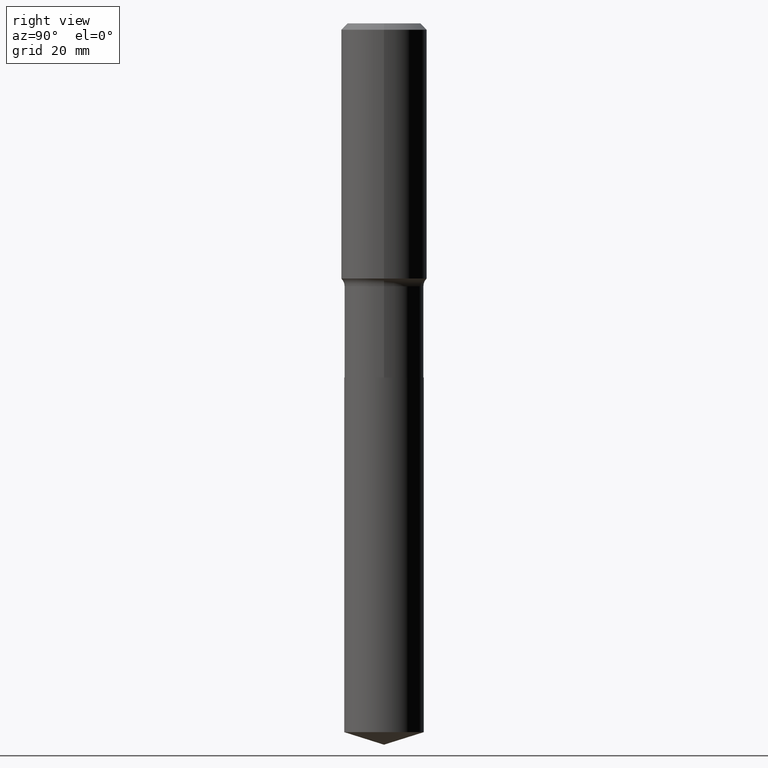
[diagram: clean part render]
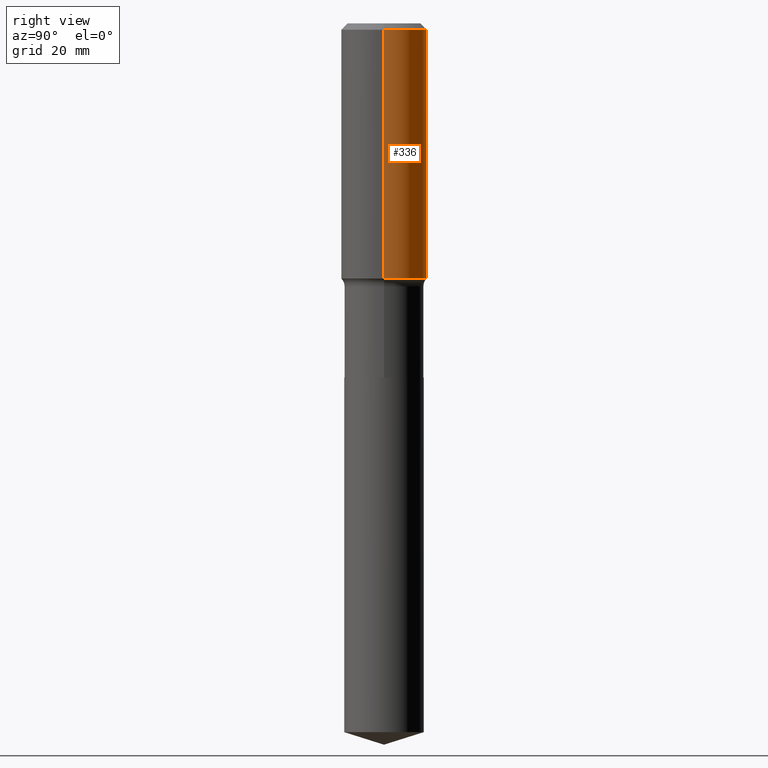
[diagram: same view with one face highlighted and labeled with its STEP entity id]
A machine part, right view. The second image highlights one B-rep face of the part: STEP entity #336.
In plain terms, the highlighted cylindrical surface (partial cylindrical patch) has radius 7.9375 mm, axis along (-0, 0, 1).
Its self-contained STEP definition (entity closure, byte-faithful):
#10 = EDGE_CURVE ( 'NONE', #36, #463, #171, .T. ) ;
#13 = ORIENTED_EDGE ( 'NONE', *, *, #109, .T. ) ;
#33 = DIRECTION ( 'NONE',  ( -2.445468806185136877E-29, 3.491481338843145188E-15, 1.000000000000000000 ) ) ;
#36 = VERTEX_POINT ( 'NONE', #245 ) ;
#65 = EDGE_LOOP ( 'NONE', ( #13, #467, #359, #346 ) ) ;
#78 = CARTESIAN_POINT ( 'NONE',  ( -0.3125000000000000000, -1.104182445818667700E-15, -0.04687500000000027062 ) ) ;
#91 = CARTESIAN_POINT ( 'NONE',  ( 1.146313502899289261E-30, -1.636631877582734044E-16, -0.04687500000000027062 ) ) ;
#92 = FACE_OUTER_BOUND ( 'NONE', #65, .T. ) ;
#106 = VERTEX_POINT ( 'NONE', #78 ) ;
#109 = EDGE_CURVE ( 'NONE', #36, #491, #451, .T. ) ;
#140 = AXIS2_PLACEMENT_3D ( 'NONE', #453, #343, #340 ) ;
#154 = AXIS2_PLACEMENT_3D ( 'NONE', #91, #278, #461 ) ;
#168 = VECTOR ( 'NONE', #471, 39.37007874015748143 ) ;
#171 = LINE ( 'NONE', #435, #168 ) ;
#232 = EDGE_CURVE ( 'NONE', #491, #106, #367, .T. ) ;
#245 = CARTESIAN_POINT ( 'NONE',  ( 0.3125000000000003331, -8.667769639156650991E-15, -1.857547892416518964 ) ) ;
#254 = CARTESIAN_POINT ( 'NONE',  ( 0.3125000000000000000, -2.345839024535231998E-15, -0.04687500000000027062 ) ) ;
#274 = DIRECTION ( 'NONE',  ( -2.445468806185136597E-29, 3.491481338843145583E-15, 1.000000000000000000 ) ) ;
#278 = DIRECTION ( 'NONE',  ( -2.445468806185136597E-29, 3.491481338843145583E-15, 1.000000000000000000 ) ) ;
#292 = AXIS2_PLACEMENT_3D ( 'NONE', #423, #274, #348 ) ;
#329 = CIRCLE ( 'NONE', #154, 0.3125000000000000000 ) ;
#336 = ADVANCED_FACE ( 'NONE', ( #92 ), #352, .T. ) ;
#340 = DIRECTION ( 'NONE',  ( 1.000000000000000000, -6.982962677686265922E-15, 0.000000000000000000 ) ) ;
#343 = DIRECTION ( 'NONE',  ( -2.445468806185136597E-29, 3.491481338843145583E-15, 1.000000000000000000 ) ) ;
#346 = ORIENTED_EDGE ( 'NONE', *, *, #10, .F. ) ;
#348 = DIRECTION ( 'NONE',  ( 1.000000000000000000, -6.982962677686266711E-15, 4.876176775795935232E-29 ) ) ;
#352 = CYLINDRICAL_SURFACE ( 'NONE', #292, 0.3125000000000001665 ) ;
#359 = ORIENTED_EDGE ( 'NONE', *, *, #409, .F. ) ;
#367 = LINE ( 'NONE', #377, #394 ) ;
#377 = CARTESIAN_POINT ( 'NONE',  ( -0.3125000000000001665, 2.220446049250314264E-15, -1.537167215704658792E-29 ) ) ;
#394 = VECTOR ( 'NONE', #33, 39.37007874015748143 ) ;
#398 = CARTESIAN_POINT ( 'NONE',  ( -0.3125000000000003331, -4.265147753129375619E-15, -1.857547892416518964 ) ) ;
#409 = EDGE_CURVE ( 'NONE', #463, #106, #329, .T. ) ;
#423 = CARTESIAN_POINT ( 'NONE',  ( 0.000000000000000000, 0.000000000000000000, 0.000000000000000000 ) ) ;
#435 = CARTESIAN_POINT ( 'NONE',  ( 0.3125000000000001665, -2.182175836776959530E-15, 1.523805242436230636E-29 ) ) ;
#451 = CIRCLE ( 'NONE', #140, 0.3125000000000002776 ) ;
#453 = CARTESIAN_POINT ( 'NONE',  ( 4.542575426899541129E-29, -6.485593802379690278E-15, -1.857547892416518964 ) ) ;
#461 = DIRECTION ( 'NONE',  ( 1.000000000000000000, -6.982962677686266711E-15, 0.000000000000000000 ) ) ;
#463 = VERTEX_POINT ( 'NONE', #254 ) ;
#467 = ORIENTED_EDGE ( 'NONE', *, *, #232, .T. ) ;
#471 = DIRECTION ( 'NONE',  ( -2.445468806185136877E-29, 3.491481338843145188E-15, 1.000000000000000000 ) ) ;
#491 = VERTEX_POINT ( 'NONE', #398 ) ;